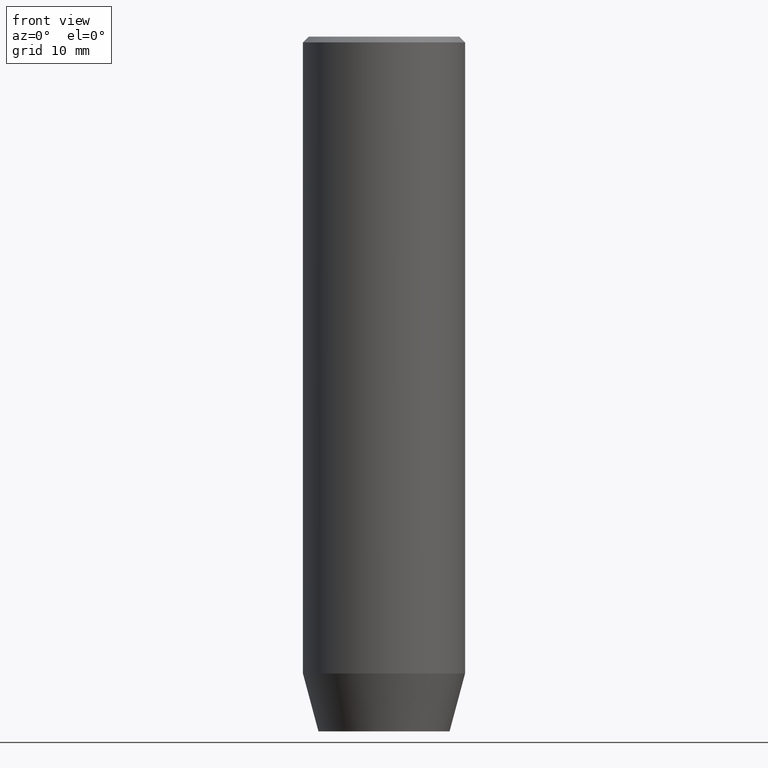
[diagram: clean part render]
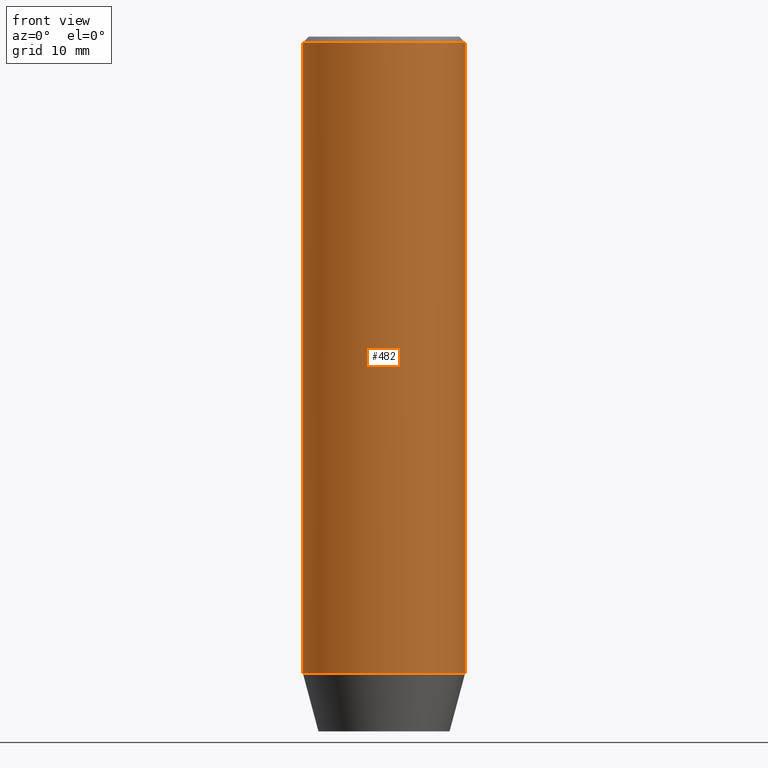
[diagram: same view with one face highlighted and labeled with its STEP entity id]
A machine part, front view. The second image highlights one B-rep face of the part: STEP entity #482.
In plain terms, the highlighted cylindrical surface (partial cylindrical patch) has radius 7 mm, axis along (-0, -0, 1).
Its self-contained STEP definition (entity closure, byte-faithful):
#2 = EDGE_CURVE ( 'NONE', #94, #56, #45, .T. ) ;
#15 = DIRECTION ( 'NONE',  ( 1.000000000000000000, 0.000000000000000000, 0.000000000000000000 ) ) ;
#45 = CIRCLE ( 'NONE', #467, 7.000000000000000000 ) ;
#52 = VECTOR ( 'NONE', #283, 1000.000000000000000 ) ;
#56 = VERTEX_POINT ( 'NONE', #438 ) ;
#64 = AXIS2_PLACEMENT_3D ( 'NONE', #184, #274, #488 ) ;
#71 = FACE_OUTER_BOUND ( 'NONE', #243, .T. ) ;
#94 = VERTEX_POINT ( 'NONE', #398 ) ;
#102 = ORIENTED_EDGE ( 'NONE', *, *, #401, .T. ) ;
#107 = LINE ( 'NONE', #291, #52 ) ;
#117 = VERTEX_POINT ( 'NONE', #348 ) ;
#120 = DIRECTION ( 'NONE',  ( 1.000000000000000000, 0.000000000000000000, 0.000000000000000000 ) ) ;
#124 = CYLINDRICAL_SURFACE ( 'NONE', #545, 7.000000000000000000 ) ;
#130 = CARTESIAN_POINT ( 'NONE',  ( 0.000000000000000000, 0.000000000000000000, 0.000000000000000000 ) ) ;
#134 = VECTOR ( 'NONE', #344, 1000.000000000000000 ) ;
#141 = VERTEX_POINT ( 'NONE', #385 ) ;
#184 = CARTESIAN_POINT ( 'NONE',  ( 0.000000000000000000, 0.000000000000000000, -0.5000000000000117684 ) ) ;
#237 = DIRECTION ( 'NONE',  ( -0.000000000000000000, -0.000000000000000000, 1.000000000000000000 ) ) ;
#243 = EDGE_LOOP ( 'NONE', ( #277, #248, #102, #369 ) ) ;
#248 = ORIENTED_EDGE ( 'NONE', *, *, #2, .T. ) ;
#274 = DIRECTION ( 'NONE',  ( 0.000000000000000000, 0.000000000000000000, -1.000000000000000000 ) ) ;
#277 = ORIENTED_EDGE ( 'NONE', *, *, #373, .F. ) ;
#283 = DIRECTION ( 'NONE',  ( -0.000000000000000000, -0.000000000000000000, 1.000000000000000000 ) ) ;
#290 = CARTESIAN_POINT ( 'NONE',  ( 0.000000000000000000, 0.000000000000000000, -55.00000000000000000 ) ) ;
#291 = CARTESIAN_POINT ( 'NONE',  ( -7.000000000000000000, 8.572527594031473190E-16, 0.000000000000000000 ) ) ;
#293 = LINE ( 'NONE', #383, #134 ) ;
#327 = CIRCLE ( 'NONE', #64, 7.000000000000000000 ) ;
#344 = DIRECTION ( 'NONE',  ( -0.000000000000000000, -0.000000000000000000, 1.000000000000000000 ) ) ;
#348 = CARTESIAN_POINT ( 'NONE',  ( 7.000000000000000000, 0.000000000000000000, -0.5000000000000117684 ) ) ;
#369 = ORIENTED_EDGE ( 'NONE', *, *, #561, .T. ) ;
#373 = EDGE_CURVE ( 'NONE', #94, #141, #107, .T. ) ;
#383 = CARTESIAN_POINT ( 'NONE',  ( 7.000000000000000000, 0.000000000000000000, 0.000000000000000000 ) ) ;
#385 = CARTESIAN_POINT ( 'NONE',  ( -7.000000000000000000, 8.572527594031473190E-16, -0.5000000000000117684 ) ) ;
#398 = CARTESIAN_POINT ( 'NONE',  ( -7.000000000000000000, 8.572527594031473190E-16, -55.00000000000000000 ) ) ;
#401 = EDGE_CURVE ( 'NONE', #56, #117, #293, .T. ) ;
#438 = CARTESIAN_POINT ( 'NONE',  ( 7.000000000000000000, 0.000000000000000000, -55.00000000000000000 ) ) ;
#467 = AXIS2_PLACEMENT_3D ( 'NONE', #290, #237, #15 ) ;
#482 = ADVANCED_FACE ( 'NONE', ( #71 ), #124, .T. ) ;
#488 = DIRECTION ( 'NONE',  ( 1.000000000000000000, 0.000000000000000000, 0.000000000000000000 ) ) ;
#533 = DIRECTION ( 'NONE',  ( -0.000000000000000000, -0.000000000000000000, 1.000000000000000000 ) ) ;
#545 = AXIS2_PLACEMENT_3D ( 'NONE', #130, #533, #120 ) ;
#561 = EDGE_CURVE ( 'NONE', #117, #141, #327, .T. ) ;